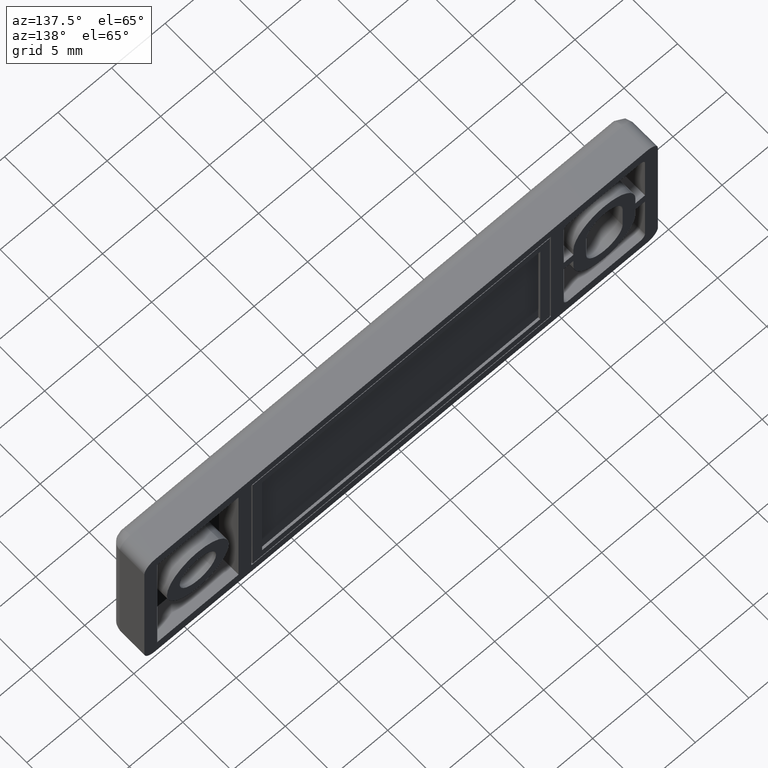
[diagram: clean part render]
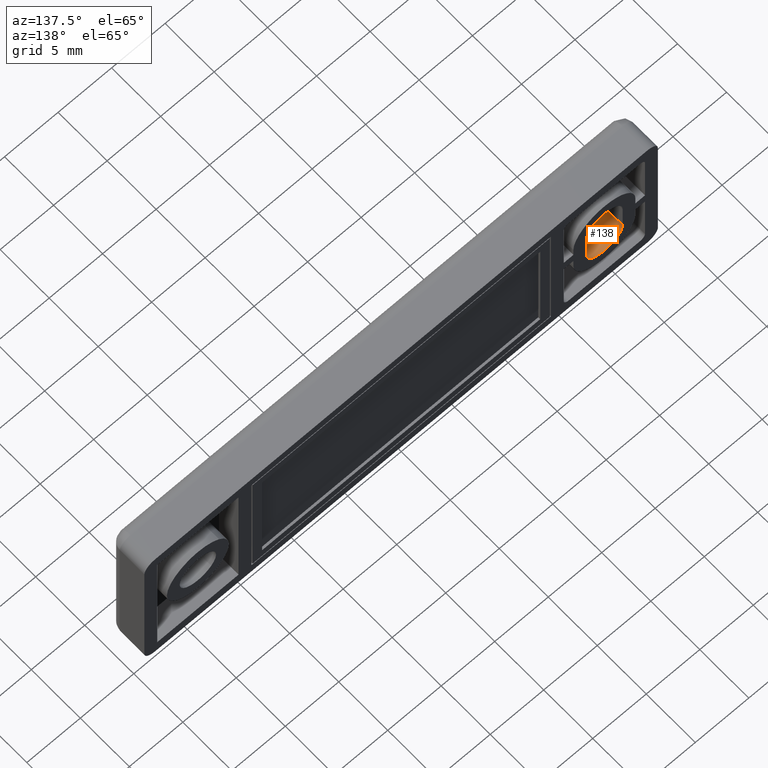
[diagram: same view with one face highlighted and labeled with its STEP entity id]
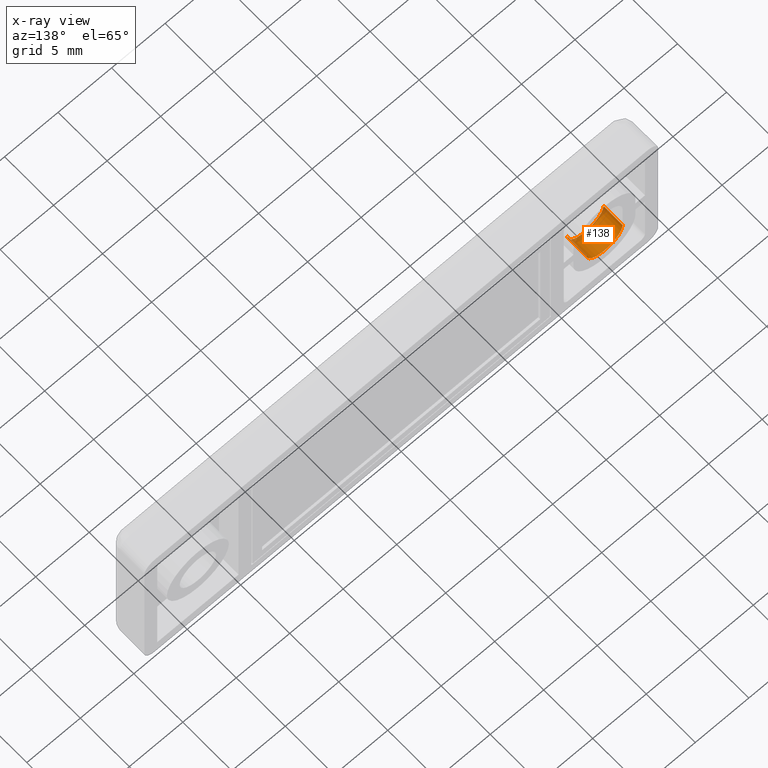
[diagram: x-ray of the same camera — body ghosted, the highlighted face saturated]
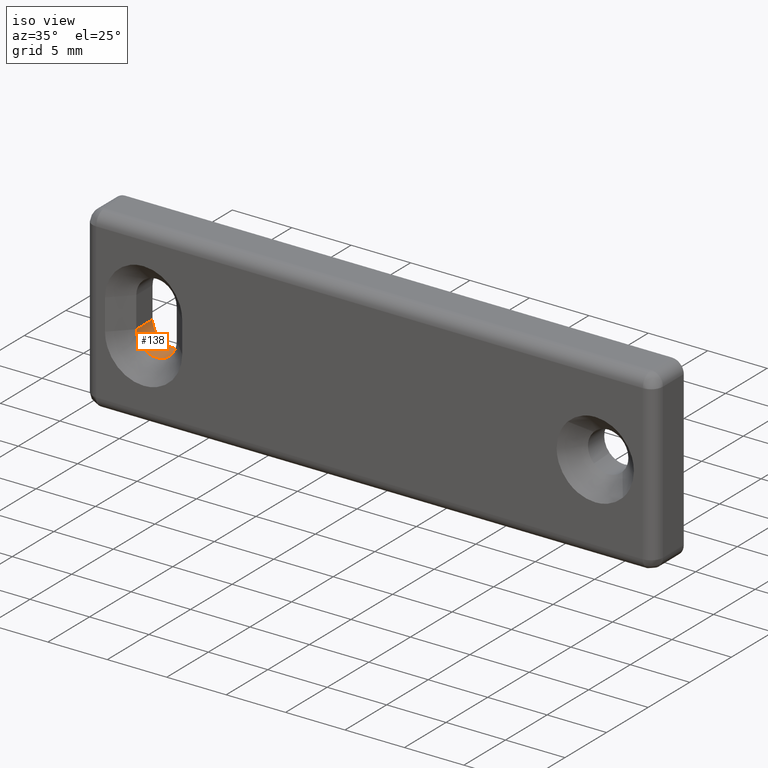
[diagram: same view with one face highlighted and labeled with its STEP entity id]
A machine part, auxiliary view. The second image highlights one B-rep face of the part: STEP entity #138.
The next image is the same camera in x-ray: the body ghosted, the highlighted face saturated — about 11% of this face is hidden behind the body in this view.
A second angle (iso view) of the same face is appended — the face is thin or edge-on in the first view.
In plain terms, the highlighted cylindrical surface (edge-blend (fillet) strip) has radius 1.7 mm, axis along (-0, 1, -0).
Its self-contained STEP definition (entity closure, byte-faithful):
#138=ADVANCED_FACE('',(#787),#786,.F.);
#786=CYLINDRICAL_SURFACE('',#1323,1.70000000000E+00);
#787=FACE_OUTER_BOUND('',#1324,.T.);
#1320=CARTESIAN_POINT('',(-1.90000000000E+01,4.99687500000E-02,-1.30000000000E+00));
#1321=DIRECTION('',(-1.71812157321E-18,1.00000000000E+00,-6.56124157676E-17));
#1322=DIRECTION('',(-8.72653549902E-03,6.55949241990E-17,9.99961923064E-01));
#1323=AXIS2_PLACEMENT_3D('',#1320,#1321,#1322);
#1324=EDGE_LOOP('',(#1717,#1718,#1719,#1720,#1721,#1722));
#1717=ORIENTED_EDGE('',*,*,#2036,.F.);
#1718=ORIENTED_EDGE('',*,*,#2031,.T.);
#1719=ORIENTED_EDGE('',*,*,#2030,.T.);
#1720=ORIENTED_EDGE('',*,*,#2033,.T.);
#1721=ORIENTED_EDGE('',*,*,#2037,.F.);
#1722=ORIENTED_EDGE('',*,*,#2038,.F.);
#2030=EDGE_CURVE('',#3378,#3331,#3379,.T.);
#2031=EDGE_CURVE('',#3371,#3378,#3385,.T.);
#2033=EDGE_CURVE('',#3331,#3397,#3398,.T.);
#2036=EDGE_CURVE('',#3371,#3417,#3418,.T.);
#2037=EDGE_CURVE('',#3424,#3397,#3425,.T.);
#2038=EDGE_CURVE('',#3417,#3424,#3431,.T.);
#3331=VERTEX_POINT('',#4598);
#3371=VERTEX_POINT('',#4633);
#3378=VERTEX_POINT('',#4637);
#3379=(BOUNDED_CURVE() B_SPLINE_CURVE(3,(#4638,#4639,#4640,#4641,#4642,#4643,#4644,#4645,#4646),.UNSPECIFIED.,.F.,.F.) B_SPLINE_CURVE_WITH_KNOTS((4,1,1,1,1,1,4),(6.79057150000E-08,6.46730145085E-01,1.06397861467E+00,1.35602665734E+00,1.73156306974E+00,2.14881782765E+00,2.67037015638E+00),.UNSPECIFIED.) CURVE() GEOMETRIC_REPRESENTATION_ITEM() RATIONAL_B_SPLINE_CURVE((1.00000000000E+00,1.00000000000E+00,1.00000000000E+00,1.00000000000E+00,1.00000000000E+00,1.00000000000E+00,1.00000000000E+00,1.00000000000E+00,1.00000000000E+00)) REPRESENTATION_ITEM('') );
#3385=(BOUNDED_CURVE() B_SPLINE_CURVE(3,(#4647,#4648,#4649,#4650,#4651,#4652,#4653,#4654,#4655,#4656),.UNSPECIFIED.,.F.,.F.) B_SPLINE_CURVE_WITH_KNOTS((4,1,1,1,1,1,1,4),(6.76956500000E-08,2.92061029235E-01,6.67592887340E-01,9.80533536021E-01,1.29346789260E+00,1.77328783615E+00,2.14881839850E+00,2.67037086540E+00),.UNSPECIFIED.) CURVE() GEOMETRIC_REPRESENTATION_ITEM() RATIONAL_B_SPLINE_CURVE((1.00000000000E+00,1.00000000000E+00,1.00000000000E+00,1.00000000000E+00,1.00000000000E+00,1.00000000000E+00,1.00000000000E+00,1.00000000000E+00,1.00000000000E+00,1.00000000000E+00)) REPRESENTATION_ITEM('') );
#3397=VERTEX_POINT('',#4660);
#3398=LINE('',#4661,#4662);
#3417=VERTEX_POINT('',#4671);
#3418=LINE('',#4672,#4673);
#3424=VERTEX_POINT('',#4675);
#3425=(BOUNDED_CURVE() B_SPLINE_CURVE(3,(#4676,#4677,#4678,#4679,#4680,#4681,#4682,#4683,#4684),.UNSPECIFIED.,.F.,.F.) B_SPLINE_CURVE_WITH_KNOTS((4,1,1,1,1,1,4),(6.79037810000E-08,6.67592710273E-01,8.97084436406E-01,1.25174754398E+00,1.77328736481E+00,2.14881782765E+00,2.67037015638E+00),.UNSPECIFIED.) CURVE() GEOMETRIC_REPRESENTATION_ITEM() RATIONAL_B_SPLINE_CURVE((1.00000000000E+00,1.00000000000E+00,1.00000000000E+00,1.00000000000E+00,1.00000000000E+00,1.00000000000E+00,1.00000000000E+00,1.00000000000E+00,1.00000000000E+00)) REPRESENTATION_ITEM('') );
#3431=(BOUNDED_CURVE() B_SPLINE_CURVE(3,(#4685,#4686,#4687,#4688,#4689,#4690,#4691,#4692,#4693),.UNSPECIFIED.,.F.,.F.) B_SPLINE_CURVE_WITH_KNOTS((4,1,1,1,1,1,4),(6.76910530000E-08,6.46730316600E-01,8.97084674448E-01,1.25174787676E+00,1.77328783615E+00,2.14881839850E+00,2.67037086540E+00),.UNSPECIFIED.) CURVE() GEOMETRIC_REPRESENTATION_ITEM() RATIONAL_B_SPLINE_CURVE((1.00000000000E+00,1.00000000000E+00,1.00000000000E+00,1.00000000000E+00,1.00000000000E+00,1.00000000000E+00,1.00000000000E+00,1.00000000000E+00,1.00000000000E+00)) REPRESENTATION_ITEM('') );
#4598=CARTESIAN_POINT('',(-1.73000000000E+01,-1.95000000000E+00,-1.30000000000E+00));
#4633=CARTESIAN_POINT('',(-2.07000000000E+01,-1.95000000000E+00,-1.30000000000E+00));
#4637=CARTESIAN_POINT('',(-1.89999993710E+01,-1.95000000000E+00,-3.00000000000E+00));
#4638=CARTESIAN_POINT('',(-1.89999993710E+01,-1.95000000000E+00,-3.00000000000E+00));
#4639=CARTESIAN_POINT('',(-1.87843879860E+01,-1.95000000000E+00,-3.00022273795E+00));
#4640=CARTESIAN_POINT('',(-1.84299014922E+01,-1.95000000000E+00,-2.93158127881E+00));
#4641=CARTESIAN_POINT('',(-1.80309374350E+01,-1.95000000000E+00,-2.71194412777E+00));
#4642=CARTESIAN_POINT('',(-1.77561155828E+01,-1.95000000000E+00,-2.47486868154E+00));
#4643=CARTESIAN_POINT('',(-1.75322563987E+01,-1.95000000000E+00,-2.18806928519E+00));
#4644=CARTESIAN_POINT('',(-1.73484337059E+01,-1.95000000000E+00,-1.78674122306E+00));
#4645=CARTESIAN_POINT('',(-1.72999143246E+01,-1.95000000000E+00,-1.47385850612E+00));
#4646=CARTESIAN_POINT('',(-1.73000000000E+01,-1.95000000000E+00,-1.30000000000E+00));
#4647=CARTESIAN_POINT('',(-2.07000000000E+01,-1.95000000000E+00,-1.30000000000E+00));
#4648=CARTESIAN_POINT('',(-2.07000044164E+01,-1.95000000000E+00,-1.39735266655E+00));
#4649=CARTESIAN_POINT('',(-2.06808489368E+01,-1.95000000000E+00,-1.61988452921E+00));
#4650=CARTESIAN_POINT('',(-2.05892671301E+01,-1.95000000000E+00,-1.93571219868E+00));
#4651=CARTESIAN_POINT('',(-2.04330442758E+01,-1.95000000000E+00,-2.23229993257E+00));
#4652=CARTESIAN_POINT('',(-2.02035837367E+01,-1.95000000000E+00,-2.52273459444E+00));
#4653=CARTESIAN_POINT('',(-1.98950048342E+01,-1.95000000000E+00,-2.76659538216E+00));
#4654=CARTESIAN_POINT('',(-1.94728284005E+01,-1.95000000000E+00,-2.95370743943E+00));
#4655=CARTESIAN_POINT('',(-1.91738593860E+01,-1.95000000000E+00,-3.00009035284E+00));
#4656=CARTESIAN_POINT('',(-1.89999993710E+01,-1.95000000000E+00,-3.00000000000E+00));
#4660=CARTESIAN_POINT('',(-1.73000000000E+01,0.00000000000E+00,-1.30000000000E+00));
#4661=CARTESIAN_POINT('',(-1.73000000000E+01,-1.95000000000E+00,-1.30000000000E+00));
#4662=VECTOR('',#4663,1.95000000000E+00);
#4663=DIRECTION('',(0.00000000000E+00,1.00000000000E+00,0.00000000000E+00));
#4671=CARTESIAN_POINT('',(-2.07000000000E+01,0.00000000000E+00,-1.30000000000E+00));
#4672=CARTESIAN_POINT('',(-2.07000000000E+01,-1.95000000000E+00,-1.30000000000E+00));
#4673=VECTOR('',#4674,1.95000000000E+00);
#4674=DIRECTION('',(0.00000000000E+00,1.00000000000E+00,0.00000000000E+00));
#4675=CARTESIAN_POINT('',(-1.89999993710E+01,0.00000000000E+00,-3.00000000000E+00));
#4676=CARTESIAN_POINT('',(-1.89999993710E+01,0.00000000000E+00,-3.00000000000E+00));
#4677=CARTESIAN_POINT('',(-1.87774184497E+01,0.00000000000E+00,-3.00025537662E+00));
#4678=CARTESIAN_POINT('',(-1.84785846186E+01,0.00000000000E+00,-2.94043666163E+00));
#4679=CARTESIAN_POINT('',(-1.81039101281E+01,0.00000000000E+00,-2.75464019648E+00));
#4680=CARTESIAN_POINT('',(-1.78048453696E+01,0.00000000000E+00,-2.53578895017E+00));
#4681=CARTESIAN_POINT('',(-1.75390560920E+01,0.00000000000E+00,-2.20781082394E+00));
#4682=CARTESIAN_POINT('',(-1.73462956700E+01,0.00000000000E+00,-1.77282649922E+00));
#4683=CARTESIAN_POINT('',(-1.72999097330E+01,0.00000000000E+00,-1.47385999287E+00));
#4684=CARTESIAN_POINT('',(-1.73000000000E+01,0.00000000000E+00,-1.30000000000E+00));
#4685=CARTESIAN_POINT('',(-2.07000000000E+01,0.00000000000E+00,-1.30000000000E+00));
#4686=CARTESIAN_POINT('',(-2.07002254053E+01,0.00000000000E+00,-1.51561888335E+00));
#4687=CARTESIAN_POINT('',(-2.06423366191E+01,0.00000000000E+00,-1.81447620542E+00));
#4688=CARTESIAN_POINT('',(-2.04587717445E+01,0.00000000000E+00,-2.19044817558E+00));
#4689=CARTESIAN_POINT('',(-2.02357879588E+01,0.00000000000E+00,-2.49515382794E+00));
#4690=CARTESIAN_POINT('',(-1.99078104711E+01,0.00000000000E+00,-2.76094367827E+00));
#4691=CARTESIAN_POINT('',(-1.94728260207E+01,0.00000000000E+00,-2.95370432560E+00));
#4692=CARTESIAN_POINT('',(-1.91738593787E+01,0.00000000000E+00,-3.00009032549E+00));
#4693=CARTESIAN_POINT('',(-1.89999993710E+01,0.00000000000E+00,-3.00000000000E+00));